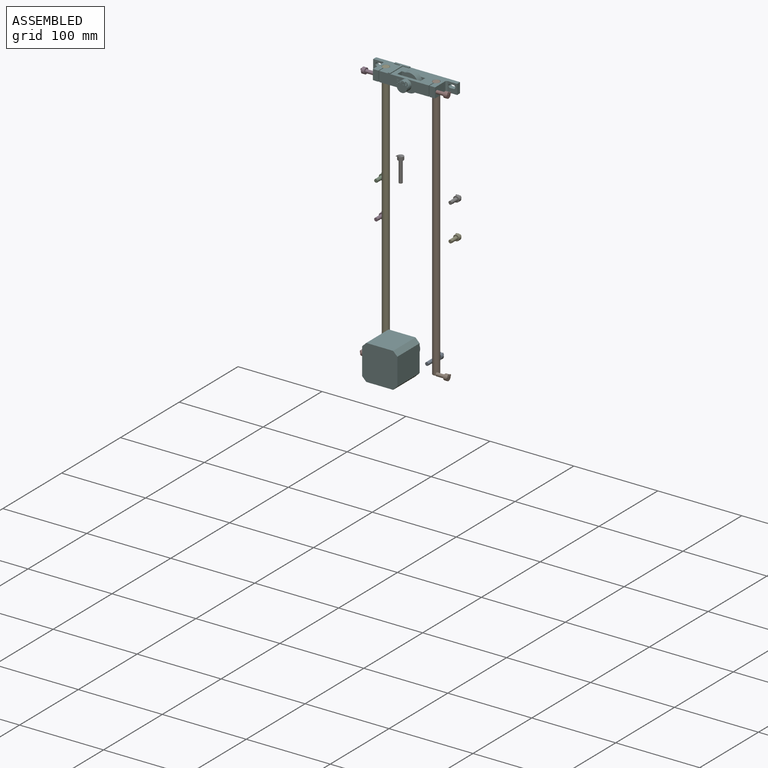
[diagram: assembled view]
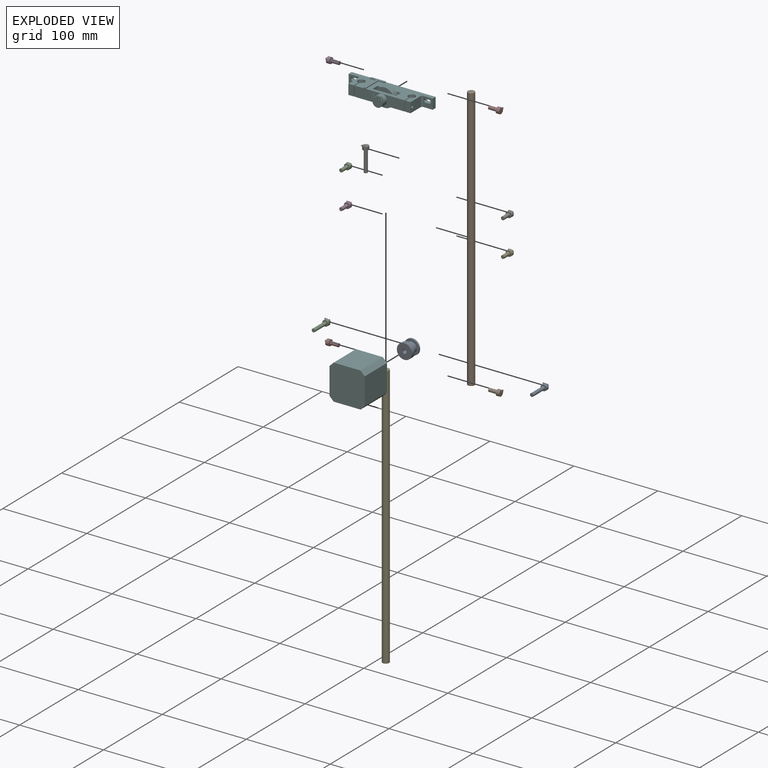
[diagram: exploded view]
GUIDED TOUR — MATED ASSEMBLY WITH SUBASSEMBLIES (Onshape document 57066dcde4b0fd3bf2ad620b, AutoMate assembly 57066dcde4b0fd3bf2ad620b_f562a61df4c0aba7eec617d7_5c54b8a93cd9b93062b6638a_default)

This assembly has 18 component occurrences arranged in 16 top-level units: 15 individual components plus 1 subassembly (S0). The tour has two levels: first the top level, where each subassembly is treated as one rigid unit; then each subassembly is toured internally in its own section (nesting deeper than one subassembly level is flattened into its subassembly's section).

Components are labeled P0..P17 across the whole record; subassembly units are labeled S0..S0. A mate is a constraint between two units; its type names the relative motion it leaves free:
  FASTENED — locks the two components together rigidly (no relative motion).
Axis/direction vectors are unit vectors and 'through' points are millimeter coordinates, both in the assembly's world frame.

TOP-LEVEL MATES (between units; each subassembly's internal mates are listed in its own section)
  1. FASTENED "Fastened 1": S0 <-> P14, direction (0.000, 0.000, 1.000) through (19.94, 8.96, 154.14) mm
  2. FASTENED "Fastened 13": P7 <-> S0, direction (-1.000, 0.000, 0.000) through (86.94, -0.08, 148.14) mm
  3. FASTENED "Fastened 12": P12 <-> S0, direction (1.000, 0.000, 0.000) through (12.94, -0.11, 148.14) mm
  4. FASTENED "Fastened 16": P8 <-> P15, direction (0.000, 1.000, 0.000) through (49.94, -2.31, -140.36) mm

TOP-LEVEL ASSEMBLY ORDER
  1. P8 — the base component [order verified]
  2. P15 [order verified]
  3. P14 [order verified]
  4. P10 [order verified]
  5. S0 [order verified]
  6. P16 [order verified]
  7. P7 [order verified]
  8. P12 [order verified]
  9. P6 [order verified]
  10. P4 [order verified]
  11. P3 [order verified]
  12. P11 [order verified]
  13. P17 [order verified]
  14. P1 [order verified]
  15. P2 [order verified]
  16. P0 [order verified]
Order-tag legend:
  [order verified] — this step's position reverses a verified removal order: the component was checked to insert without passing through the ones already placed.

Of the 18 component occurrences, 1 carries the full construction recipe — the FeatureScript program that regenerates the part's solid from scratch; the rest are supplied as boundary geometry only. Each toured unit is shown spotlighted twice — assembled, then exploded with a leader line back to its socket (green = recipe-attached component, orange = geometry-only, blue = subassembly unit; the rest desaturated gray).
NOTE — document 2 of 2 of this assembly tour. The two overview renders and the header above are repeated from document 1; the component sections below continue where the previous document stopped.
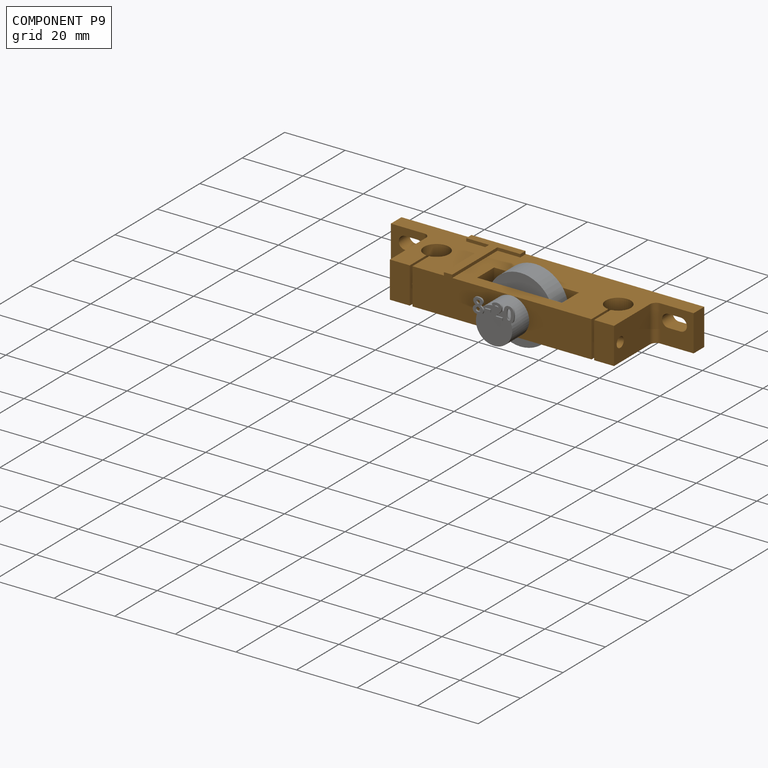
[diagram: component P9 — assembled]
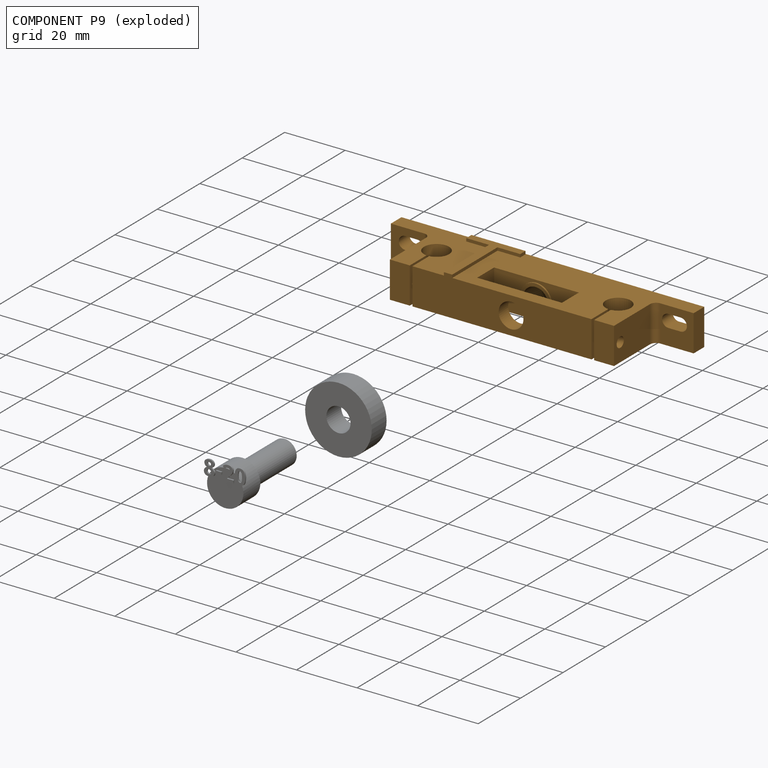
[diagram: component P9 — exploded]
COMPONENT P9 — geometry summary (no construction recipe available for this part):
  bounding box: 100.0 x 24.0 x 13.0 mm
  B-rep topology: 1 solid, 53 faces, 286 edges
  volume: 17687 mm^3 (57% of its bounding box)
Held by: FASTENED mate "Fastened 1" to P5; FASTENED mate "Fastened 2" to P13; FASTENED mate "Fastened 1" to P5; FASTENED mate "Fastened 2" to P13.
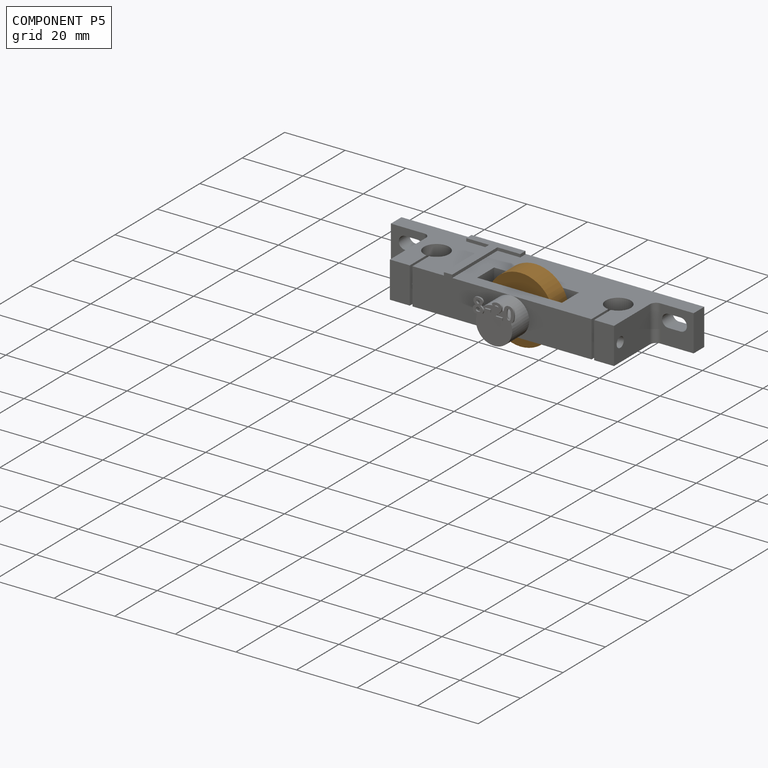
[diagram: component P5 — assembled]
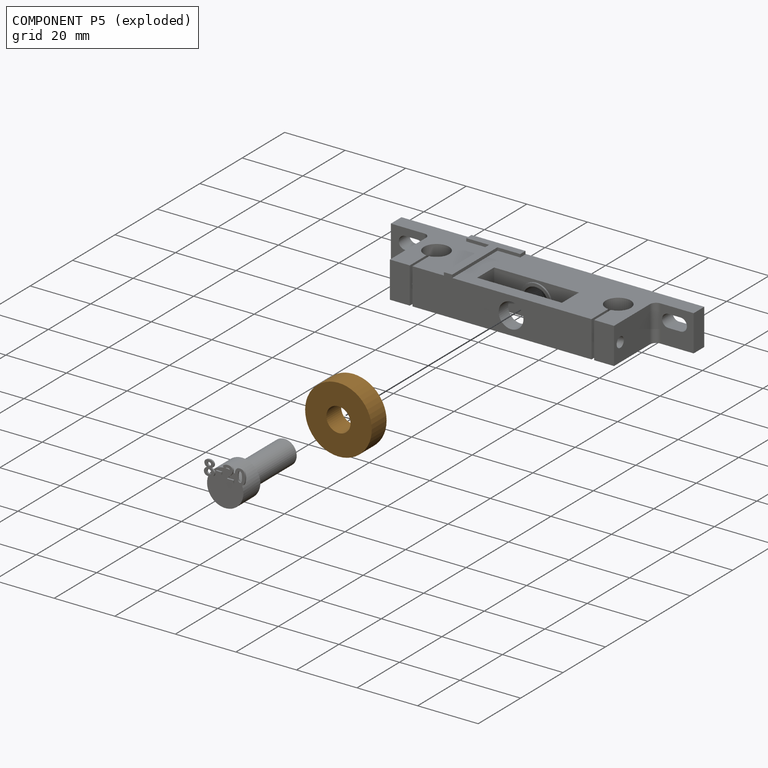
[diagram: component P5 — exploded]
COMPONENT P5 — geometry summary (no construction recipe available for this part):
  bounding box: 22.0 x 22.0 x 7.0 mm
  B-rep topology: 1 solid, 4 faces, 12 edges
  volume: 2309 mm^3 (68% of its bounding box)
  symmetry: 2-fold rotationally symmetric about the x axis; 2-fold rotationally symmetric about the y axis; revolution-symmetric about the z axis through its bounding-box center; mirror-symmetric across its x mid-plane, y mid-plane, z mid-plane
Held by: FASTENED mate "Fastened 1" to P9; FASTENED mate "Fastened 1" to P9.
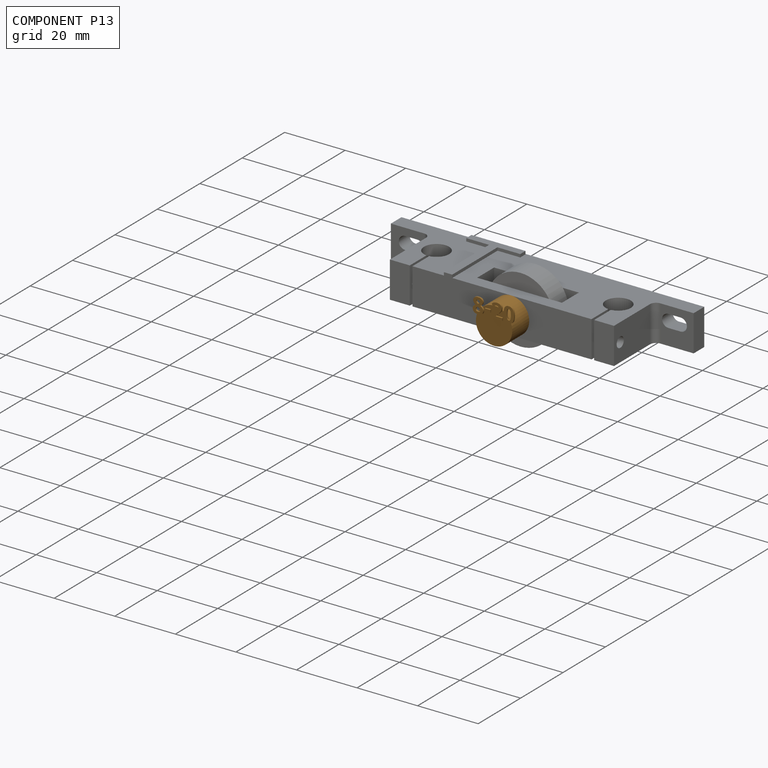
[diagram: component P13 — assembled]
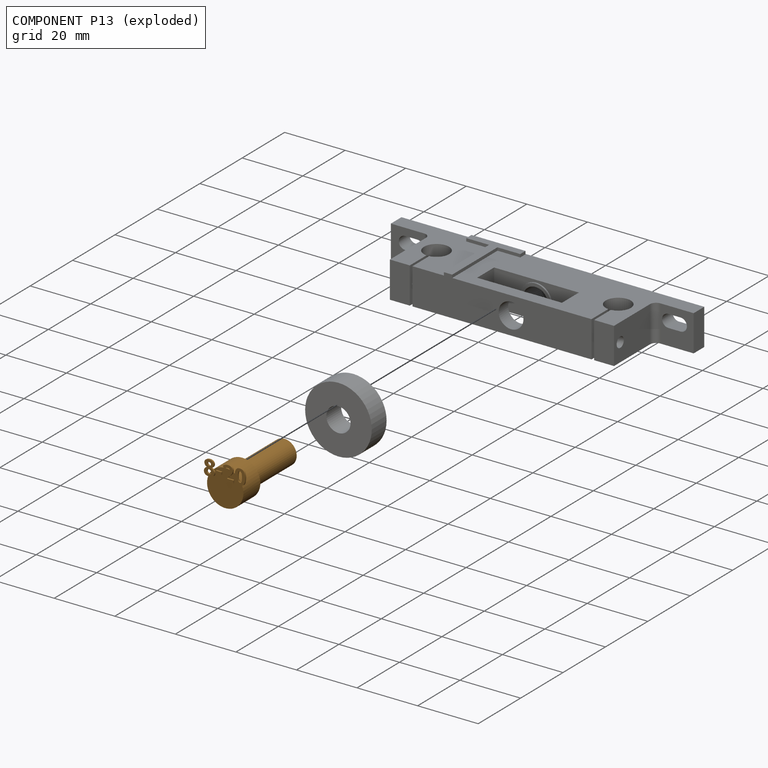
[diagram: component P13 — exploded]
COMPONENT P13 — geometry summary (no construction recipe available for this part):
  bounding box: 28.5 x 13.6 x 13.4 mm
  B-rep topology: 1 solid, 89 faces, 502 edges
  volume: 1926 mm^3 (37% of its bounding box)
Held by: FASTENED mate "Fastened 2" to P9; FASTENED mate "Fastened 2" to P9.
PROVENANCE & LICENSES
Assembly (occurrences, transforms, mates, per-part STEP geometry): AutoMate dataset, Zenodo record 7776208, CC0.
Construction recipes: CADFS (HuggingFace VladPyatov/CADFS, CC-BY-4.0, layered over the ABC dataset), FeatureScript reconstruction programs keyed by ABC model id.
Join: ABC meta listings map ABC model id -> Onshape documentId; within a shared document, parts are matched by geometric signature (bounding-box dims + volume at 0.1% relative tolerance, exact B-rep face/solid counts).
Verification: 1 of this assembly's 18 components carries a recipe attachment, and every attachment is mesh-verified: the CADFS STEP and the AutoMate member STEP were compared as meshes in their shared local frame (symmetric sampled-point-to-mesh distance); worst across the 1 attachment: below the mesh-comparison resolution (tessellation chordal tolerance ~0.0435 mm) on a 29 mm part.
Renders: orthographic iso camera (az 35 / el 25); the floor grid conveys scale (grid pitch printed in each image; no ruler). In the exploded view each component is displaced by its stored offset vector: the offsets alone carry the explosion direction (mate normal/axis signs are not orientation cues and do not encode it), and separation distances are assigned per mate-chain, not proportionally to assembly-order depth.
